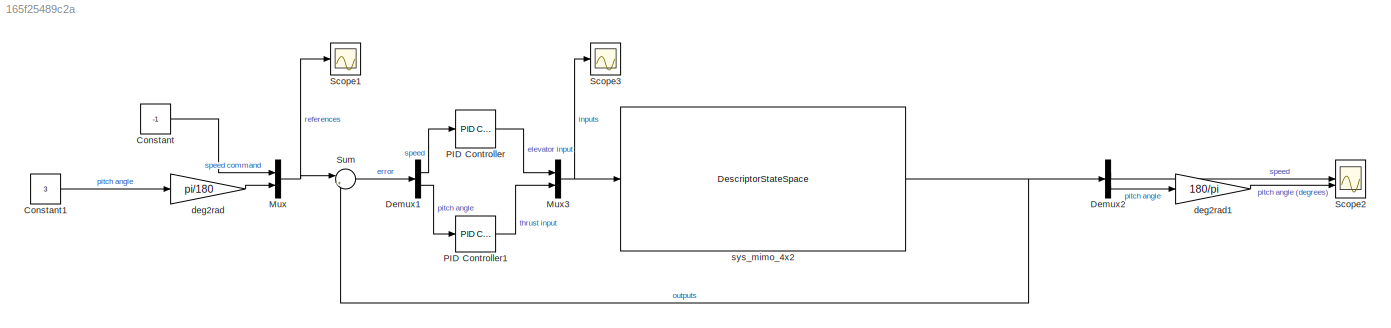
MODEL slx_165f25489c2a
KIND model
CONFIG AbsTol = auto
CONFIG EnableMultiTasking = off
CONFIG FixedStep = auto
CONFIG MaxStep = auto
CONFIG MinStep = auto
CONFIG RelTol = 1e-3
CONFIG SampleTimeConstraint = Unconstrained
CONFIG SolverName = VariableStepAuto
CONFIG StartTime = 0.0
CONFIG StopTime = 100
BLOCK [Constant] Constant
  Value = -1
BLOCK [Constant] Constant1
  Value = 3
BLOCK [Demux] Demux1
  Outputs = 2
BLOCK [Demux] Demux2
  Outputs = 2
BLOCK [Mux] Mux
  DisplayOption = bar
  Inputs = 2
BLOCK [Mux] Mux3
  DisplayOption = bar
  Inputs = 2
BLOCK [Reference] PID Controller  REF=slpidlib/PID Controller
  LibrarySourceBlock = simulink/Continuous/PID Controller
  SourceBlock = slpidlib/PID Controller
  SourceType = PID 1dof
BLOCK [Reference] PID Controller1  REF=slpidlib/PID Controller
  LibrarySourceBlock = simulink/Continuous/PID Controller
  SourceBlock = slpidlib/PID Controller
  SourceType = PID 1dof
BLOCK [Scope] Scope1
  Floating = off
  NumInputPorts = 1
  ScopeSpecificationString = Simulink.scopes.TimeScopeBlockCfg('CurrentConfiguration', extmgr.ConfigurationSet(extmgr.Configuration('Core','General UI',true),extmgr.Configuration('Core','Source UI',true),extmgr.Configuration('Sources','WiredSimulink',true,'DataLoggingVariableName','ScopeData1'),extmgr.Configuration('Visuals','Time Domain',true,'SerializedDisplays',{struct('MinYLimReal','-1.13154','MaxYLimReal','0.1839','YLabe...<+1455ch>
BLOCK [Scope] Scope2
  Floating = off
  NumInputPorts = 2
  ScopeSpecificationString = Simulink.scopes.TimeScopeBlockCfg('CurrentConfiguration', extmgr.ConfigurationSet(extmgr.Configuration('Core','General UI',true),extmgr.Configuration('Core','Source UI',true),extmgr.Configuration('Sources','WiredSimulink',true),extmgr.Configuration('Visuals','Time Domain',true,'SerializedDisplays',{struct('MinYLimReal','-28.90307','MaxYLimReal','8.47771','YLabelReal','','MinYLimMag','0.00000','Max...<+1948ch>
BLOCK [Scope] Scope3
  Floating = off
  NumInputPorts = 1
  ScopeSpecificationString = Simulink.scopes.TimeScopeBlockCfg('CurrentConfiguration', extmgr.ConfigurationSet(extmgr.Configuration('Core','General UI',true),extmgr.Configuration('Core','Source UI',true),extmgr.Configuration('Sources','WiredSimulink',true,'DataLoggingVariableName','ScopeData2'),extmgr.Configuration('Visuals','Time Domain',true,'SerializedDisplays',{struct('MinYLimReal','-3.6558','MaxYLimReal','5.83842','YLabe...<+1447ch>
BLOCK [Sum] Sum
  Inputs = |+-
BLOCK [Gain] deg2rad
  Gain = pi/180
BLOCK [Gain] deg2rad1
  Gain = 180/pi
BLOCK [DescriptorStateSpace] sys_mimo_4x2
  A = sys_mimo_2x2.A
  B = sys_mimo_2x2.B
  C = sys_mimo_2x2.C
  D = sys_mimo_2x2.D
  DirectFeedthrough = False
  E = eye(2)
  InitialCondition = [0,0]
LINE Constant1:1 -> deg2rad:1
LINE Constant:1 -> Mux:1
LINE Demux1:1 -> PID Controller:1
LINE Demux1:2 -> PID Controller1:1
LINE Demux2:1 -> Scope2:1
LINE Demux2:2 -> deg2rad1:1
NET Mux3:1 -> Scope3:1, sys_mimo_4x2:1
NET Mux:1 -> Scope1:1, Sum:1
LINE PID Controller1:1 -> Mux3:2
LINE PID Controller:1 -> Mux3:1
LINE Sum:1 -> Demux1:1
LINE deg2rad1:1 -> Scope2:2
LINE deg2rad:1 -> Mux:2
NET sys_mimo_4x2:1 -> Demux2:1, Sum:2
note: NET lines group one-source signal fan-out (src -> all destinations, sorted); 1:1 wires keep LINE
